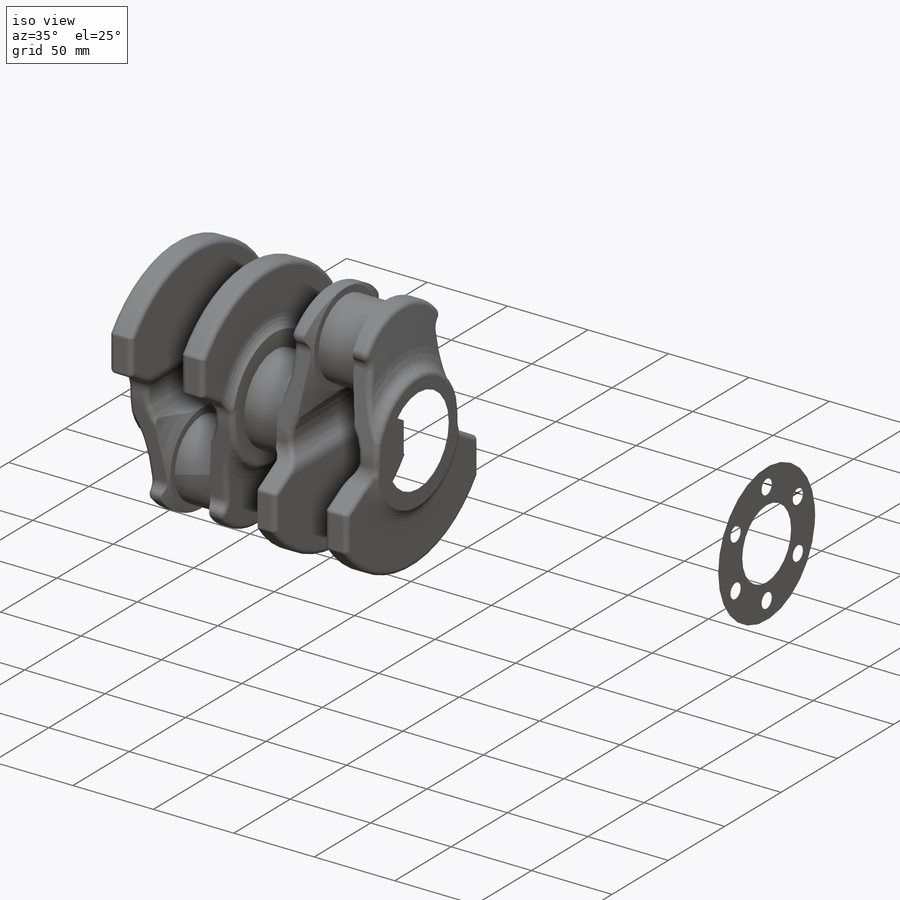
[diagram: iso view]
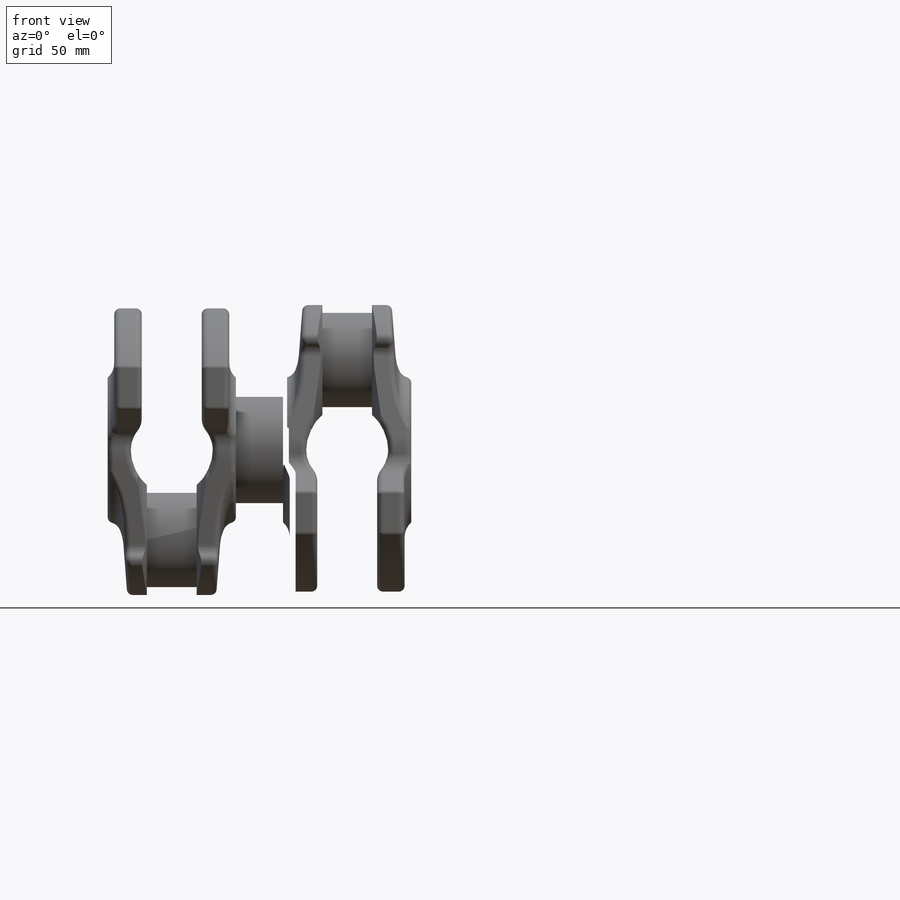
[diagram: front view]
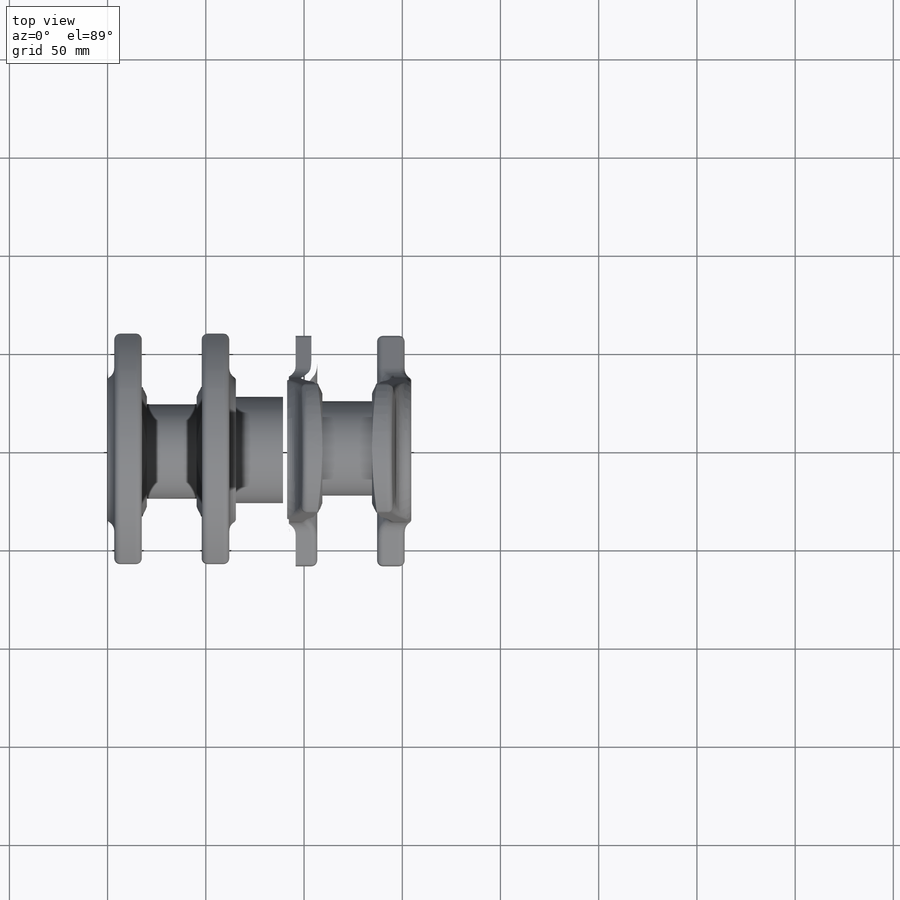
[diagram: top view]
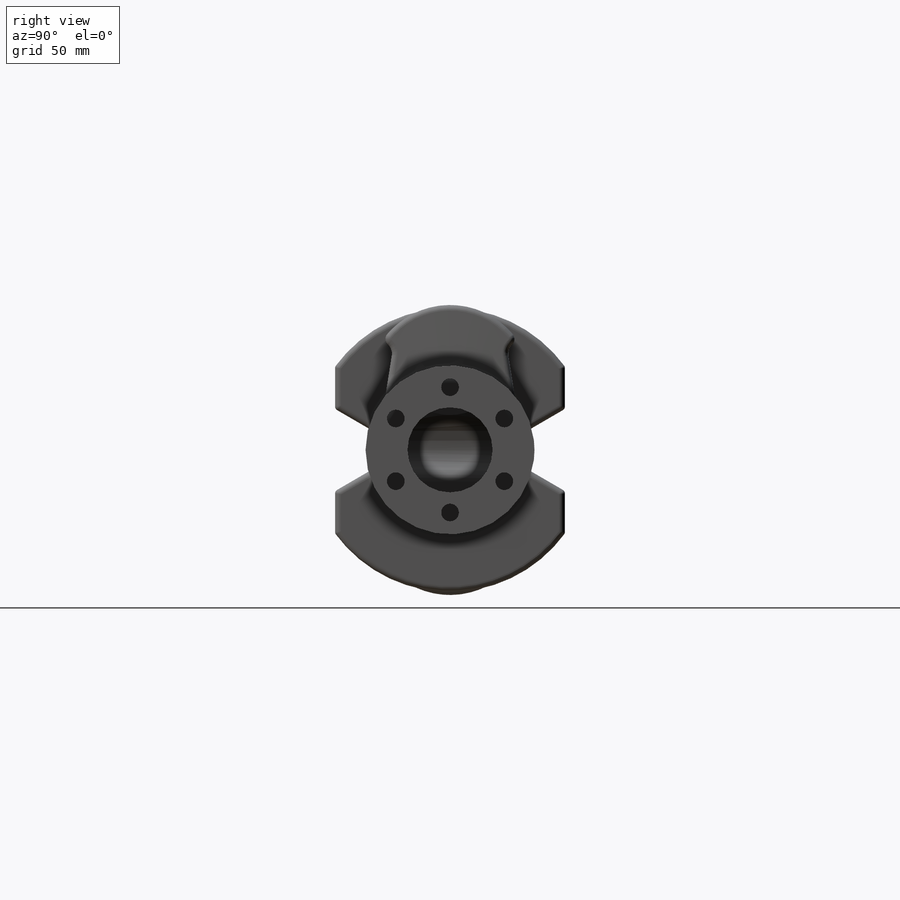
[diagram: right view]
SOLIDWORKS PART (.sldprt)
format: sldprt  version: not decoded by parser v0  size: 3,037,696 bytes
history: native  units: mm
features: sketch x19, extrude x7, fillet x6, cut_extrude x5, plane x4, cut_revolve x3, mirror x3, material x1, move_body x1, revolve x1, pattern_circular x1 (+11 scaffold rows collapsed)
feature tree (62):
  scaffold x11  (default folders/planes/origin — collapsed)
  material  "Gray Cast Iron"
  sketch  "Sketch1"  dims[D1=54.1mm]
  sketch  "Sketch2"  dims[c1.D1=144.5mm c1.D2=54.1mm c1.D5=73.6mm c1.D6=10.0mm c1.D7=10.0mm c2.D2=117.0mm c2.D3=21.5mm c2.D4=~44.475174mm c2.D6=~29.847324mm c3.D4=7.8mm c3.D6=~41.292614mm c4.D4=7.8mm c4.D6=~26.067285mm c4.D8=14.3mm c4.D9=58.4mm c4.D10=22.7mm c4.D11=5.0mm c4.D12=5.0mm c4.D13=5.0mm]
  extrude  "Boss-Extrude1"  Depth=20mm
  fillet  "Fillet1"  Radius=4mm
  fillet  "Fillet2"  Radius=6mm
  fillet  "Fillet3"  Radius=2mm
  sketch  "Sketch4"
  sketch  "Sketch3"  dims[c1.D4=8.0mm c1.D1=9.6mm c1.D2=15.0mm c1.D3=3.4mm c2.D4=3.4mm c2.D1=3.4mm c2.D2=14.0mm c2.D3=7.5mm c3.D4=11.8mm c3.D5=12.0mm]
  cut_extrude  "Cut-Extrude2"  Depth=148mm
  sketch  "Sketch5"  dims[D1=0.0mm]
  fillet  "Fillet4"  Radius=10mm
  cut_revolve  "Cut-Revolve2"  Angle=90deg
  sketch  "Sketch8"  dims[D2=6.8mm D3=21.0mm D1=10.0mm D4=~26.161633mm D5=2.0mm]
  cut_revolve  "Cut-Revolve3"  Angle=90deg
  sketch  "Sketch9"  dims[D2=48.0mm D1=4.0mm]
  sketch  "Sketch10"
  sketch  "Sketch11"
  cut_extrude  "Cut-Extrude5"  Depth=148mm
  plane  "Plane1"
  sketch  "Sketch12"  dims[D1=25.0mm D2=5.0mm]
  cut_revolve  "Cut-Revolve4"  Angle=360deg
  fillet  "Fillet9"  Radius=3mm
  fillet  "Fillet10"  Radius=3mm
  plane  "Plane2"  Offset=12.65mm
  mirror  "Mirror3"
  sketch  "Sketch13"
  extrude  "Boss-Extrude2"  [1 undecoded]
  plane  "Plane3"  Offset=12mm
  mirror  "Mirror5"
  move_body  "Body-Move/Copy1"
  plane  "Plane4"  Offset=12mm
  sketch  "Sketch14"
  extrude  "Boss-Extrude3"  [1 undecoded]
  sketch  "Sketch15"
  extrude  "Boss-Extrude4"  [1 undecoded]
  extrude  "Boss-Extrude5"  Depth=22.5mm
  mirror  "Mirror6"
  sketch  "Sketch16"  dims[D1=86.0mm]
  extrude  "Boss-Extrude6"  Depth=15.4mm
  sketch  "Sketch17"  dims[D1=21.65mm D2=6.8mm D3=13.3mm D4=11.3mm]
  revolve  "Revolve1"  Angle=360deg
  sketch  "Sketch18"  dims[D1=9.0mm D2=11.1mm]
  cut_extrude  "Cut-Extrude6"  Depth=15.4mm
  pattern_circular  "CirPattern1"  Count=6 Angle=360deg
  sketch  "Sketch19"  dims[D1=32.6mm]
  extrude  "Boss-Extrude7"  Depth=22.7mm
  sketch  "Sketch20"  dims[D1=14.9mm]
  cut_extrude  "Cut-Extrude7"  Depth=8mm
  sketch  "Sketch21"  dims[D1=21.0mm]
  cut_extrude  "Cut-Extrude8"  Depth=8mm
decode coverage: 33 of 46 modeling features carry decoded parameters
note: ~ marks probable driven/reference dimensions
note: 3 parameter values undecoded
summary: no parameter record found for 3 features
note: suppression state not decoded; provenance and decode notes live in map.json
